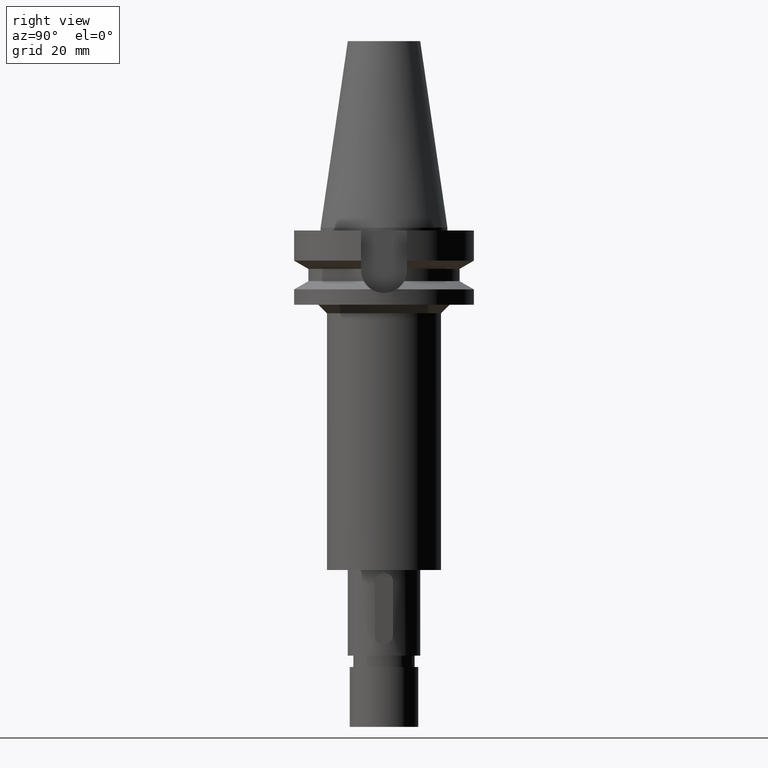
[diagram: clean part render]
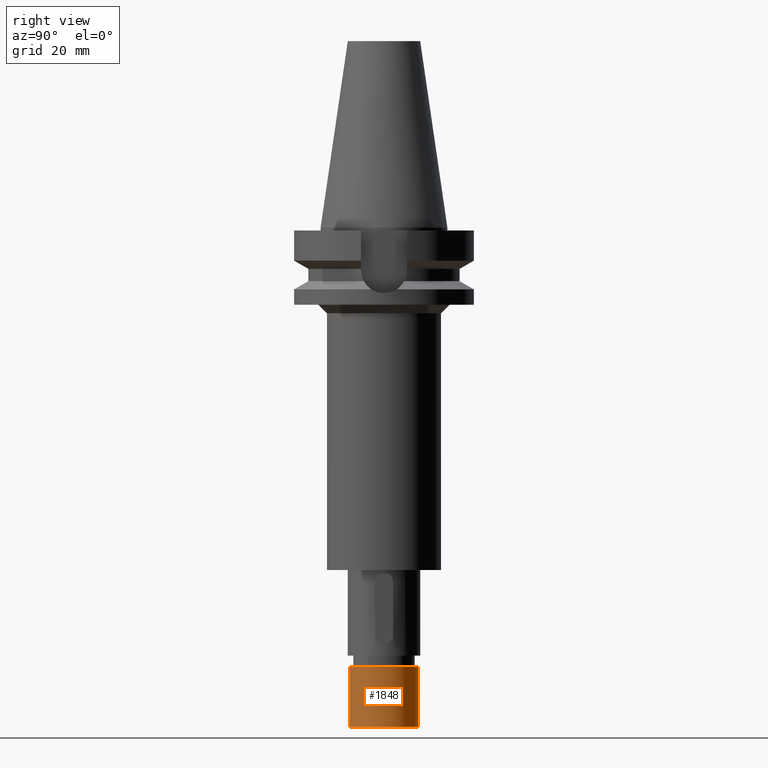
[diagram: same view with one face highlighted and labeled with its STEP entity id]
A machine part, right view. The second image highlights one B-rep face of the part: STEP entity #1848.
In plain terms, the highlighted cylindrical surface (edge-blend (fillet) strip) has radius 12 mm, axis along (0, 0, -1).
Its self-contained STEP definition (entity closure, byte-faithful):
#798=CARTESIAN_POINT('',(0.E0,2.172768351047E-14,-1.54E2));
#799=DIRECTION('',(0.E0,0.E0,-1.E0));
#800=DIRECTION('',(0.E0,1.E0,0.E0));
#801=AXIS2_PLACEMENT_3D('',#798,#799,#800);
#830=DIRECTION('',(0.E0,0.E0,-1.E0));
#831=VECTOR('',#830,2.1E1);
#832=CARTESIAN_POINT('',(0.E0,1.2E1,-1.54E2));
#833=LINE('',#832,#831);
#837=DIRECTION('',(0.E0,0.E0,-1.E0));
#838=VECTOR('',#837,2.1E1);
#839=CARTESIAN_POINT('',(0.E0,-1.2E1,-1.54E2));
#840=LINE('',#839,#838);
#852=CARTESIAN_POINT('',(0.E0,2.172768351047E-14,-1.75E2));
#853=DIRECTION('',(0.E0,0.E0,1.E0));
#854=DIRECTION('',(0.E0,-1.E0,0.E0));
#855=AXIS2_PLACEMENT_3D('',#852,#853,#854);
#1204=CARTESIAN_POINT('',(0.E0,1.2E1,-1.54E2));
#1205=CARTESIAN_POINT('',(0.E0,-1.2E1,-1.54E2));
#1206=VERTEX_POINT('',#1204);
#1207=VERTEX_POINT('',#1205);
#1208=CARTESIAN_POINT('',(0.E0,1.2E1,-1.75E2));
#1209=VERTEX_POINT('',#1208);
#1210=CARTESIAN_POINT('',(0.E0,-1.2E1,-1.75E2));
#1211=VERTEX_POINT('',#1210);
#1834=CARTESIAN_POINT('',(0.E0,2.172768351047E-14,7.742E1));
#1835=DIRECTION('',(0.E0,0.E0,-1.E0));
#1836=DIRECTION('',(0.E0,-1.E0,0.E0));
#1837=AXIS2_PLACEMENT_3D('',#1834,#1835,#1836);
#1838=CYLINDRICAL_SURFACE('',#1837,1.2E1);
#1840=ORIENTED_EDGE('',*,*,#1839,.T.);
#1842=ORIENTED_EDGE('',*,*,#1841,.F.);
#1844=ORIENTED_EDGE('',*,*,#1843,.F.);
#1845=ORIENTED_EDGE('',*,*,#1823,.F.);
#1846=EDGE_LOOP('',(#1840,#1842,#1844,#1845));
#1847=FACE_OUTER_BOUND('',#1846,.F.);
#802=CIRCLE('',#801,1.2E1);
#856=CIRCLE('',#855,1.2E1);
#1823=EDGE_CURVE('',#1206,#1207,#802,.T.);
#1839=EDGE_CURVE('',#1206,#1209,#833,.T.);
#1841=EDGE_CURVE('',#1211,#1209,#856,.T.);
#1843=EDGE_CURVE('',#1207,#1211,#840,.T.);
#1848=ADVANCED_FACE('',(#1847),#1838,.T.);